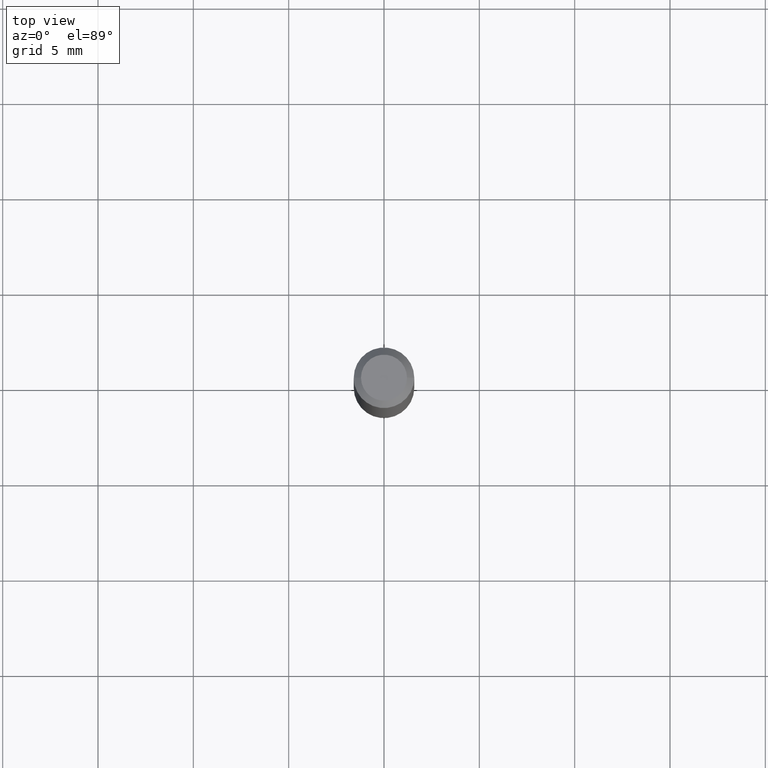
[diagram: clean part render]
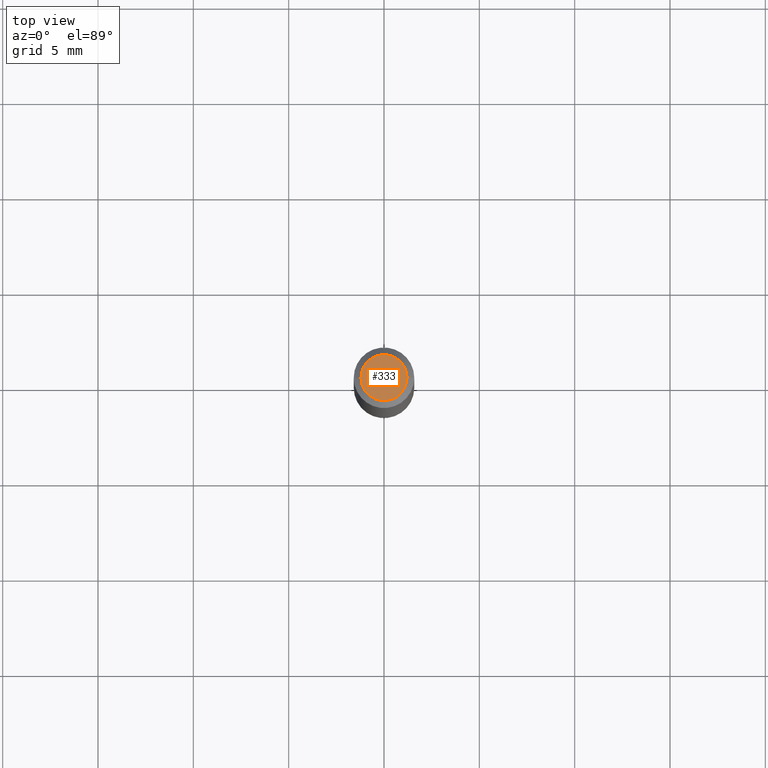
[diagram: same view with one face highlighted and labeled with its STEP entity id]
A machine part, top view. The second image highlights one B-rep face of the part: STEP entity #333.
In plain terms, the highlighted planar face has unit normal (0, -0, -1).
Its self-contained STEP definition (entity closure, byte-faithful):
#14 = EDGE_LOOP ( 'NONE', ( #213, #128 ) ) ;
#45 = DIRECTION ( 'NONE',  ( -1.000000000000000000, 6.982962677686265922E-15, -4.876176775795935793E-29 ) ) ;
#60 = DIRECTION ( 'NONE',  ( -2.445468806185136597E-29, 3.491481338843145583E-15, 1.000000000000000000 ) ) ;
#69 = CARTESIAN_POINT ( 'NONE',  ( 0.04749999999999999362, -4.035134999187581581E-16, -1.989643822619502098E-16 ) ) ;
#80 = DIRECTION ( 'NONE',  ( -2.445468806185136597E-29, 3.491481338843145583E-15, 1.000000000000000000 ) ) ;
#83 = CIRCLE ( 'NONE', #260, 0.04749999999999999362 ) ;
#89 = VERTEX_POINT ( 'NONE', #129 ) ;
#128 = ORIENTED_EDGE ( 'NONE', *, *, #416, .T. ) ;
#129 = CARTESIAN_POINT ( 'NONE',  ( -0.04749999999999999362, 3.578768372314206562E-16, -1.989643822619551895E-16 ) ) ;
#137 = EDGE_CURVE ( 'NONE', #89, #283, #83, .T. ) ;
#213 = ORIENTED_EDGE ( 'NONE', *, *, #137, .T. ) ;
#226 = FACE_OUTER_BOUND ( 'NONE', #14, .T. ) ;
#260 = AXIS2_PLACEMENT_3D ( 'NONE', #357, #80, #325 ) ;
#271 = CARTESIAN_POINT ( 'NONE',  ( 4.865611903635008365E-45, -6.946804277620623666E-31, -1.989643822619527736E-16 ) ) ;
#283 = VERTEX_POINT ( 'NONE', #69 ) ;
#316 = AXIS2_PLACEMENT_3D ( 'NONE', #271, #60, #443 ) ;
#323 = CARTESIAN_POINT ( 'NONE',  ( 3.316907271900976096E-16, 0.04749999999999999362, -2.653275547260257586E-16 ) ) ;
#325 = DIRECTION ( 'NONE',  ( 1.000000000000000000, -6.982962677686267499E-15, 4.852736867747366768E-29 ) ) ;
#333 = ADVANCED_FACE ( 'NONE', ( #226 ), #390, .F. ) ;
#357 = CARTESIAN_POINT ( 'NONE',  ( 4.865611903635008365E-45, -6.946804277620623666E-31, -1.989643822619527736E-16 ) ) ;
#360 = DIRECTION ( 'NONE',  ( 2.438088387897960049E-29, -3.491481338843145188E-15, -1.000000000000000000 ) ) ;
#390 = PLANE ( 'NONE',  #392 ) ;
#392 = AXIS2_PLACEMENT_3D ( 'NONE', #323, #360, #45 ) ;
#416 = EDGE_CURVE ( 'NONE', #283, #89, #441, .T. ) ;
#441 = CIRCLE ( 'NONE', #316, 0.04749999999999999362 ) ;
#443 = DIRECTION ( 'NONE',  ( 1.000000000000000000, -6.982962677686267499E-15, 4.852736867747366768E-29 ) ) ;